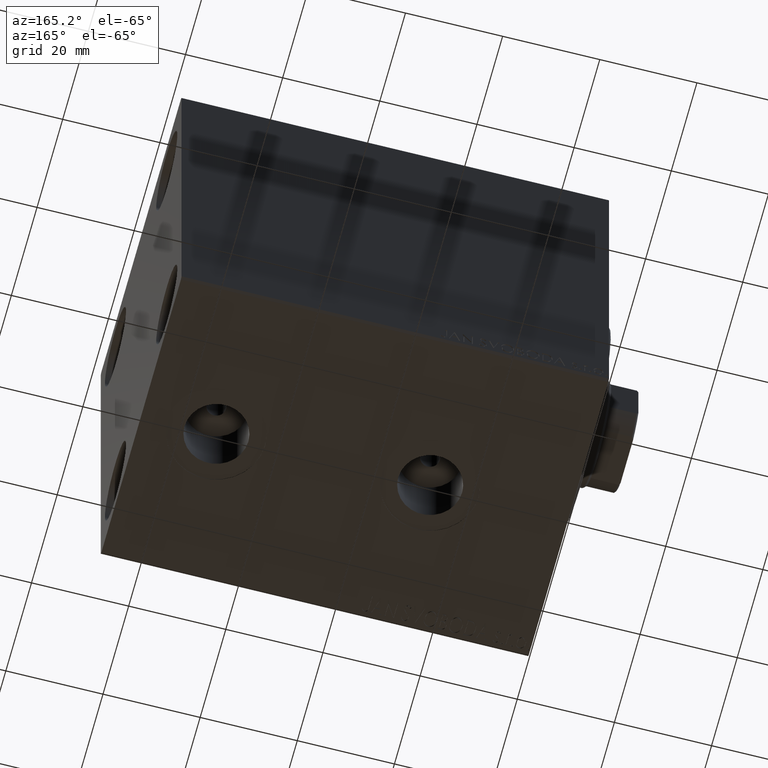
[diagram: clean part render]
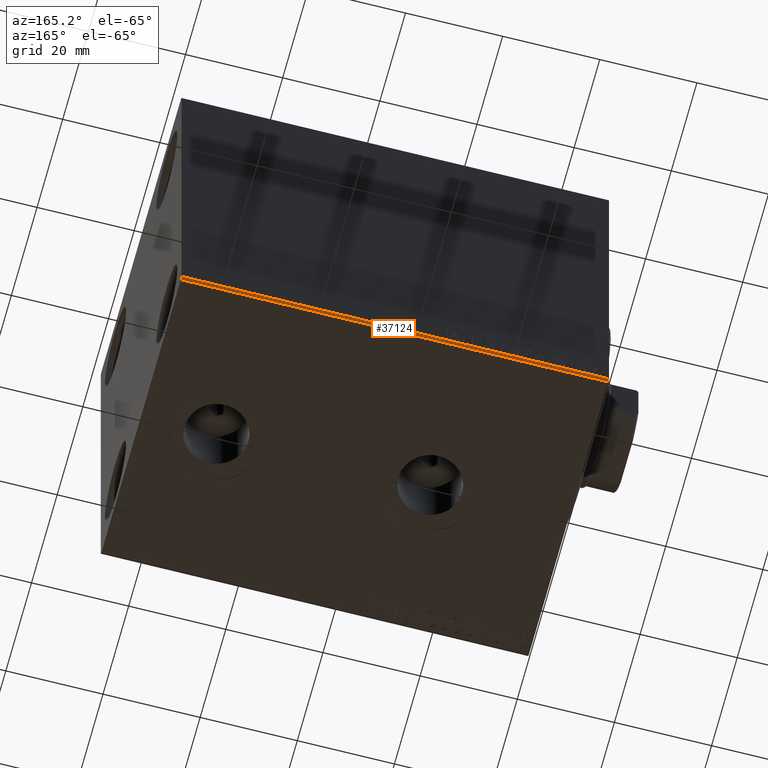
[diagram: same view with one face highlighted and labeled with its STEP entity id]
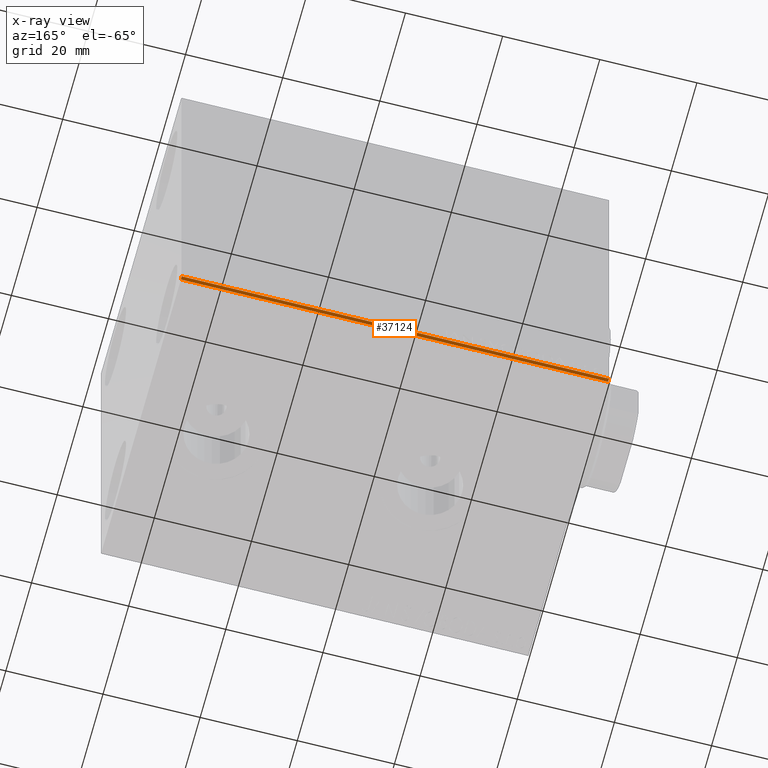
[diagram: x-ray of the same camera — body ghosted, the highlighted face saturated]
A machine part, auxiliary view. The second image highlights one B-rep face of the part: STEP entity #37124.
The next image is the same camera in x-ray: the body ghosted, the highlighted face saturated — about 0% of this face is hidden behind the body in this view.
In plain terms, the highlighted planar face has unit normal (0, -0.7071, 0.7071).
Its self-contained STEP definition (entity closure, byte-faithful):
#367 = EDGE_CURVE ( 'NONE', #41353, #15963, #3814, .T. ) ;
#992 = CARTESIAN_POINT ( 'NONE',  ( 88.00000000000000000, 36.75000000000045475, -36.74999999999943867 ) ) ;
#2637 = DIRECTION ( 'NONE',  ( 1.000000000000000000, 0.000000000000000000, 0.000000000000000000 ) ) ;
#2768 = EDGE_CURVE ( 'NONE', #42029, #35999, #30007, .T. ) ;
#3811 = ORIENTED_EDGE ( 'NONE', *, *, #2768, .F. ) ;
#3814 = LINE ( 'NONE', #35316, #19746 ) ;
#4882 = VECTOR ( 'NONE', #2637, 1000.000000000000000 ) ;
#4920 = LINE ( 'NONE', #5142, #20490 ) ;
#5142 = CARTESIAN_POINT ( 'NONE',  ( 0.000000000000000000, 31.50000000000001421, -42.00000000000000711 ) ) ;
#6894 = CARTESIAN_POINT ( 'NONE',  ( 0.000000000000000000, 31.00000000000002842, -42.50000000000000711 ) ) ;
#7005 = EDGE_CURVE ( 'NONE', #15963, #42029, #4920, .T. ) ;
#7988 = DIRECTION ( 'NONE',  ( -1.000000000000000000, 0.000000000000000000, 0.000000000000000000 ) ) ;
#11952 = CARTESIAN_POINT ( 'NONE',  ( 0.000000000000000000, 31.50000000000001421, -42.00000000000000711 ) ) ;
#15963 = VERTEX_POINT ( 'NONE', #11952 ) ;
#17474 = DIRECTION ( 'NONE',  ( -0.000000000000000000, 0.7071067811865378028, 0.7071067811865573427 ) ) ;
#17800 = CARTESIAN_POINT ( 'NONE',  ( 88.00000000000000000, 31.50000000000001421, -42.00000000000000711 ) ) ;
#17902 = LINE ( 'NONE', #992, #26005 ) ;
#19746 = VECTOR ( 'NONE', #41991, 1000.000000000000000 ) ;
#19994 = CARTESIAN_POINT ( 'NONE',  ( 88.00000000000000000, 31.00000000000002842, -42.50000000000000711 ) ) ;
#20490 = VECTOR ( 'NONE', #28741, 1000.000000000000000 ) ;
#22528 = EDGE_LOOP ( 'NONE', ( #41718, #3811, #40676, #43143 ) ) ;
#22831 = CARTESIAN_POINT ( 'NONE',  ( 88.00000000000000000, 31.00000000000002842, -42.50000000000000711 ) ) ;
#24514 = AXIS2_PLACEMENT_3D ( 'NONE', #17800, #32022, #7988 ) ;
#26005 = VECTOR ( 'NONE', #17474, 1000.000000000000000 ) ;
#28469 = FACE_OUTER_BOUND ( 'NONE', #22528, .T. ) ;
#28741 = DIRECTION ( 'NONE',  ( 0.000000000000000000, -0.7071067811865378028, -0.7071067811865573427 ) ) ;
#30007 = LINE ( 'NONE', #19994, #4882 ) ;
#32022 = DIRECTION ( 'NONE',  ( 0.000000000000000000, -0.7071067811865573427, 0.7071067811865378028 ) ) ;
#34698 = PLANE ( 'NONE',  #24514 ) ;
#35316 = CARTESIAN_POINT ( 'NONE',  ( 88.00000000000000000, 31.50000000000001421, -42.00000000000000711 ) ) ;
#35999 = VERTEX_POINT ( 'NONE', #22831 ) ;
#37124 = ADVANCED_FACE ( 'NONE', ( #28469 ), #34698, .F. ) ;
#37333 = CARTESIAN_POINT ( 'NONE',  ( 88.00000000000000000, 31.50000000000001421, -42.00000000000000711 ) ) ;
#40676 = ORIENTED_EDGE ( 'NONE', *, *, #7005, .F. ) ;
#41353 = VERTEX_POINT ( 'NONE', #37333 ) ;
#41718 = ORIENTED_EDGE ( 'NONE', *, *, #41802, .F. ) ;
#41802 = EDGE_CURVE ( 'NONE', #35999, #41353, #17902, .T. ) ;
#41991 = DIRECTION ( 'NONE',  ( -1.000000000000000000, 0.000000000000000000, 0.000000000000000000 ) ) ;
#42029 = VERTEX_POINT ( 'NONE', #6894 ) ;
#43143 = ORIENTED_EDGE ( 'NONE', *, *, #367, .F. ) ;